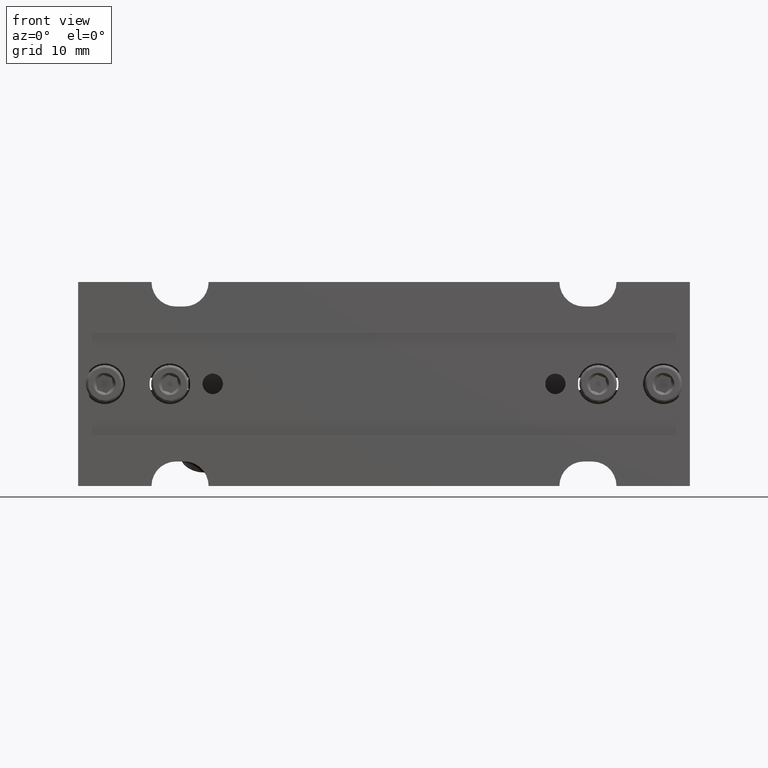
[diagram: clean part render]
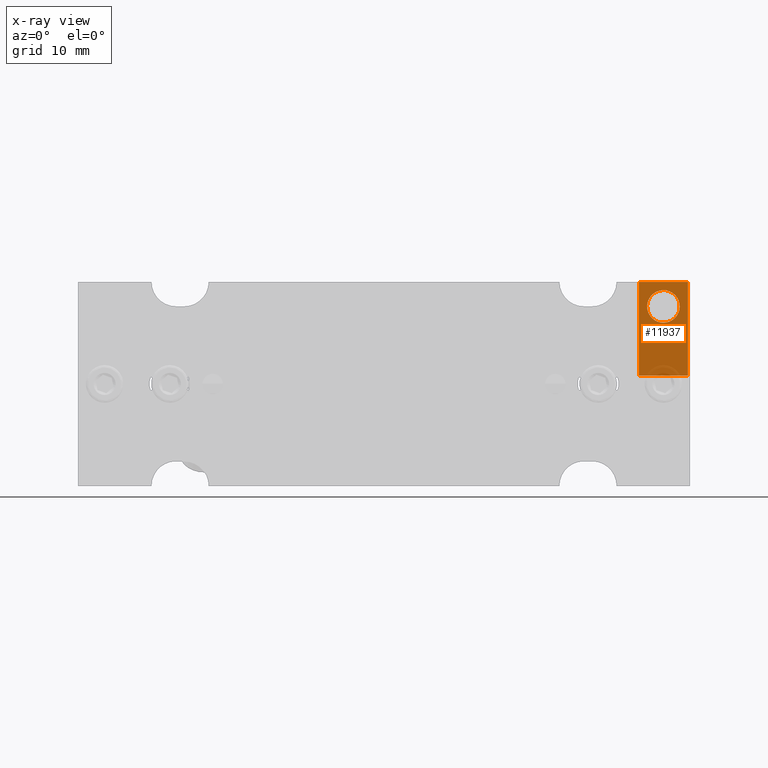
[diagram: x-ray — body ghosted, one internal face saturated and labeled with its STEP entity id]
A machine part, front view, then the same camera in x-ray: the body is ghosted and one INTERNAL B-rep face — a face not visible from any outside direction — is saturated and labeled: STEP entity #11937.
In plain terms, the highlighted planar face has unit normal (0, 1, -0).
Its self-contained STEP definition (entity closure, byte-faithful):
#462 = VERTEX_POINT ( 'NONE', #19604 ) ;
#528 = DIRECTION ( 'NONE',  ( 0.000000000000000000, 1.000000000000000000, -5.551115123125782702E-17 ) ) ;
#798 = DIRECTION ( 'NONE',  ( 0.000000000000000000, 0.000000000000000000, 1.000000000000000000 ) ) ;
#822 = CARTESIAN_POINT ( 'NONE',  ( 51.07634596628248858, 47.42343476192745300, 78.43264947075040538 ) ) ;
#993 = CARTESIAN_POINT ( 'NONE',  ( 53.76194429314890755, 47.42343476192746010, 77.41509654601604495 ) ) ;
#1104 = CARTESIAN_POINT ( 'NONE',  ( 53.22939291630320469, 47.42343476192746010, 73.62017802965158353 ) ) ;
#1202 = CARTESIAN_POINT ( 'NONE',  ( 54.60355553287595143, 47.42343476192745300, 73.50139842596011874 ) ) ;
#1205 = CARTESIAN_POINT ( 'NONE',  ( 52.26387452519005450, 47.42343476192745300, 76.27960252074018399 ) ) ;
#1301 = CARTESIAN_POINT ( 'NONE',  ( 55.68552075850722360, 47.42343476192745300, 76.65179679273362012 ) ) ;
#1303 = CARTESIAN_POINT ( 'NONE',  ( 52.91747649796231201, 47.42343476192745300, 73.79208256805149801 ) ) ;
#1403 = CARTESIAN_POINT ( 'NONE',  ( 56.02947062906315523, 47.42343476192745300, 74.93257950383672039 ) ) ;
#1612 = CARTESIAN_POINT ( 'NONE',  ( 55.94744983128704519, 47.42343476192744589, 76.13920326053889198 ) ) ;
#1760 = EDGE_CURVE ( 'NONE', #12776, #11033, #13743, .T. ) ;
#1805 = CARTESIAN_POINT ( 'NONE',  ( 51.07634596628248147, 47.42343476192745300, 66.92480621239963057 ) ) ;
#2170 = EDGE_LOOP ( 'NONE', ( #16470, #4633 ) ) ;
#2349 = CARTESIAN_POINT ( 'NONE',  ( 51.07634596628248147, 47.42343476192745300, 65.93264947075040538 ) ) ;
#2554 = CARTESIAN_POINT ( 'NONE',  ( 52.56459928371385359, 47.42343476192744589, 76.74938241819620544 ) ) ;
#2635 = LINE ( 'NONE', #15271, #17549 ) ;
#2765 = CARTESIAN_POINT ( 'NONE',  ( 54.70852396425613762, 47.42343476192745300, 73.53467584576907257 ) ) ;
#2864 = CARTESIAN_POINT ( 'NONE',  ( 54.82730350546570719, 47.42343476192746010, 77.28637509796381266 ) ) ;
#2961 = CARTESIAN_POINT ( 'NONE',  ( 55.06898831327401922, 47.42343476192746010, 73.67452367220317910 ) ) ;
#2963 = CARTESIAN_POINT ( 'NONE',  ( 53.44416796831279726, 47.42343476192745300, 77.33062309573173820 ) ) ;
#3071 = CARTESIAN_POINT ( 'NONE',  ( 55.58809264884698820, 47.42343476192745300, 74.11591652330407953 ) ) ;
#3179 = CARTESIAN_POINT ( 'NONE',  ( 54.75320282441656872, 47.42343476192746010, 73.55058318380966398 ) ) ;
#3746 = FACE_BOUND ( 'NONE', #2170, .T. ) ;
#4101 = EDGE_CURVE ( 'NONE', #9520, #8858, #16338, .T. ) ;
#4212 = CARTESIAN_POINT ( 'NONE',  ( 52.46717117402736363, 47.42343476192744589, 74.21350214878518159 ) ) ;
#4288 = ORIENTED_EDGE ( 'NONE', *, *, #19287, .F. ) ;
#4308 = CARTESIAN_POINT ( 'NONE',  ( 55.93007581461635880, 47.42343476192745300, 74.68170258586351906 ) ) ;
#4356 = LINE ( 'NONE', #10255, #4645 ) ;
#4418 = CARTESIAN_POINT ( 'NONE',  ( 54.57624546445467217, 47.42343476192745300, 77.38584167145870651 ) ) ;
#4523 = CARTESIAN_POINT ( 'NONE',  ( 52.21042868893408695, 47.42343476192746010, 74.71248835961857537 ) ) ;
#4625 = CARTESIAN_POINT ( 'NONE',  ( 55.83661407045195091, 47.42343476192746721, 74.47832853560113620 ) ) ;
#4633 = ORIENTED_EDGE ( 'NONE', *, *, #12432, .T. ) ;
#4645 = VECTOR ( 'NONE', #10659, 1000.000000000000000 ) ;
#5132 = VECTOR ( 'NONE', #798, 1000.000000000000000 ) ;
#5744 = CARTESIAN_POINT ( 'NONE',  ( 57.07634596628248858, 47.42343476192745300, 66.92480621239963057 ) ) ;
#5892 = CARTESIAN_POINT ( 'NONE',  ( 57.07634596628248858, 47.42343476192745300, 65.93264947075040538 ) ) ;
#5978 = CARTESIAN_POINT ( 'NONE',  ( 53.32538842709841731, 47.42343476192745300, 73.57892384353704074 ) ) ;
#6077 = CARTESIAN_POINT ( 'NONE',  ( 55.88881740737176784, 47.42343476192744589, 74.58569642076020045 ) ) ;
#6080 = CARTESIAN_POINT ( 'NONE',  ( 53.94927282585784667, 47.42343476192746721, 77.43264947075040538 ) ) ;
#6276 = CARTESIAN_POINT ( 'NONE',  ( 54.07634596628248147, 47.42343476192745300, 77.43264947075040538 ) ) ;
#7216 = CARTESIAN_POINT ( 'NONE',  ( 52.20524210127813092, 47.42343476192747431, 74.72609568095985821 ) ) ;
#7315 = CARTESIAN_POINT ( 'NONE',  ( 52.31822016773448780, 47.42343476192746010, 74.44000712375608941 ) ) ;
#7421 = CARTESIAN_POINT ( 'NONE',  ( 53.39948910815080296, 47.42343476192743168, 77.31471575769116100 ) ) ;
#7520 = CARTESIAN_POINT ( 'NONE',  ( 55.03066690143295148, 47.42343476192745300, 77.19291757492447914 ) ) ;
#7522 = CARTESIAN_POINT ( 'NONE',  ( 52.14505072111182216, 47.42343476192744589, 74.90555163631523783 ) ) ;
#7623 = CARTESIAN_POINT ( 'NONE',  ( 53.27649921391584797, 47.42343476192746010, 73.59944387036682656 ) ) ;
#7725 = CARTESIAN_POINT ( 'NONE',  ( 56.05885197539002718, 47.42343476192746721, 75.74690216766698825 ) ) ;
#7764 = VECTOR ( 'NONE', #18496, 1000.000000000000000 ) ;
#7832 = CARTESIAN_POINT ( 'NONE',  ( 54.39074763942512192, 47.42343476192746010, 73.45020239548479424 ) ) ;
#8594 = FACE_OUTER_BOUND ( 'NONE', #12068, .T. ) ;
#8858 = VERTEX_POINT ( 'NONE', #822 ) ;
#8870 = CARTESIAN_POINT ( 'NONE',  ( 52.85719864430043913, 47.42343476192744589, 77.04182426297809627 ) ) ;
#8971 = CARTESIAN_POINT ( 'NONE',  ( 53.30814596558885654, 47.42343476192744589, 73.58598525293083981 ) ) ;
#9175 = CARTESIAN_POINT ( 'NONE',  ( 53.08370361931009285, 47.42343476192744589, 77.19077526930966826 ) ) ;
#9377 = CARTESIAN_POINT ( 'NONE',  ( 55.83447176484785501, 47.42343476192743879, 76.42529181771494962 ) ) ;
#9520 = VERTEX_POINT ( 'NONE', #1805 ) ;
#9999 = AXIS2_PLACEMENT_3D ( 'NONE', #13150, #528, #14818 ) ;
#10255 = CARTESIAN_POINT ( 'NONE',  ( 51.07634596628248147, 47.42343476192745300, 66.92480621239963057 ) ) ;
#10607 = CARTESIAN_POINT ( 'NONE',  ( 55.90955156666034043, 47.42343476192746010, 74.63280271837717805 ) ) ;
#10659 = DIRECTION ( 'NONE',  ( -1.000000000000000000, 0.000000000000000000, -0.000000000000000000 ) ) ;
#10718 = CARTESIAN_POINT ( 'NONE',  ( 53.35618485514929432, 47.42343476192746010, 77.29856674809811068 ) ) ;
#10816 = CARTESIAN_POINT ( 'NONE',  ( 52.19426415658904972, 47.42343476192744589, 74.75583185188622792 ) ) ;
#11033 = VERTEX_POINT ( 'NONE', #12417 ) ;
#11592 = PLANE ( 'NONE',  #9999 ) ;
#11937 = ADVANCED_FACE ( 'NONE', ( #8594, #3746 ), #11592, .T. ) ;
#11966 = CARTESIAN_POINT ( 'NONE',  ( 52.43577906359823970, 47.42343476192744589, 76.59151893909458408 ) ) ;
#12054 = B_SPLINE_CURVE_WITH_KNOTS ( 'NONE', 3,
 ( #17135, #17241, #7832, #1202, #2765, #3179, #20222, #12573, #2961, #14140, #3071, #15592, #4625, #6077, #10607, #20324, #4308, #1403, #16937, #13827, #7725, #17040, #15398, #20424, #1612, #13928, #9377, #1301, #12472, #17350, #7520, #20120, #14037, #18587, #2864, #4418, #15494, #6276 ),
 .UNSPECIFIED., .F., .F.,
 ( 4, 1, 1, 1, 2, 2, 2, 1, 1, 1, 2, 2, 2, 1, 1, 1, 2, 2, 2, 1, 1, 1, 2, 2, 4 ),
 ( 0.000000000000000000, 0.06250000000003663736, 0.09375000000005495604, 0.1093750000000650868, 0.1171875000000696387, 0.1250000000000741907, 0.2500000000001597056, 0.3125000000002024492, 0.3437500000002264855, 0.3593750000002385314, 0.3671875000002416956, 0.3750000000002448042, 0.5000000000002022826, 0.5625000000001776357, 0.5937500000001684208, 0.6093750000001604272, 0.6171875000001533218, 0.6250000000001461054, 0.7500000000000984768, 0.8125000000000724976, 0.8437500000000590639, 0.8593750000000522915, 0.8671875000000490719, 0.8750000000000457412, 1.000000000000000000 ),
 .UNSPECIFIED. ) ;
#12068 = EDGE_LOOP ( 'NONE', ( #12959, #12558, #4288, #16544 ) ) ;
#12072 = CARTESIAN_POINT ( 'NONE',  ( 52.31607786210761191, 47.42343476192745300, 76.38697040589893561 ) ) ;
#12170 = CARTESIAN_POINT ( 'NONE',  ( 53.36977155924966354, 47.42343476192746721, 77.30374517973221771 ) ) ;
#12271 = CARTESIAN_POINT ( 'NONE',  ( 53.54913639969584693, 47.42343476192746010, 77.36390051554069203 ) ) ;
#12417 = CARTESIAN_POINT ( 'NONE',  ( 57.07634596628248858, 47.42343476192745300, 78.43264947075040538 ) ) ;
#12432 = EDGE_CURVE ( 'NONE', #462, #15711, #18021, .T. ) ;
#12472 = CARTESIAN_POINT ( 'NONE',  ( 55.39307891372978077, 47.42343476192744589, 76.94439615331843640 ) ) ;
#12558 = ORIENTED_EDGE ( 'NONE', *, *, #4101, .T. ) ;
#12573 = CARTESIAN_POINT ( 'NONE',  ( 54.79650707741450333, 47.42343476192745300, 73.56673219340200376 ) ) ;
#12776 = VERTEX_POINT ( 'NONE', #5744 ) ;
#12959 = ORIENTED_EDGE ( 'NONE', *, *, #17669, .T. ) ;
#13150 = CARTESIAN_POINT ( 'NONE',  ( 51.07634596628248147, 47.42343476192745300, 53.43264947075041960 ) ) ;
#13424 = EDGE_CURVE ( 'NONE', #15711, #462, #12054, .T. ) ;
#13630 = CARTESIAN_POINT ( 'NONE',  ( 53.82184294116533607, 47.42343476192744589, 73.43264947075043381 ) ) ;
#13730 = CARTESIAN_POINT ( 'NONE',  ( 52.07631228980218907, 47.42343476192744589, 75.30566145958405855 ) ) ;
#13743 = LINE ( 'NONE', #5892, #7764 ) ;
#13827 = CARTESIAN_POINT ( 'NONE',  ( 56.07637964276358389, 47.42343476192745300, 75.55963748190814044 ) ) ;
#13829 = CARTESIAN_POINT ( 'NONE',  ( 52.17834655774591113, 47.42343476192744589, 74.80053664986908757 ) ) ;
#13928 = CARTESIAN_POINT ( 'NONE',  ( 55.94226324362981728, 47.42343476192745300, 76.15281058188411123 ) ) ;
#14037 = CARTESIAN_POINT ( 'NONE',  ( 54.87619271865613513, 47.42343476192744589, 77.26585507112987727 ) ) ;
#14140 = CARTESIAN_POINT ( 'NONE',  ( 55.29549328827275190, 47.42343476192744589, 73.82347467852390821 ) ) ;
#14229 = DIRECTION ( 'NONE',  ( -1.000000000000000000, 0.000000000000000000, -0.000000000000000000 ) ) ;
#14818 = DIRECTION ( 'NONE',  ( 0.000000000000000000, 5.551115123125782702E-17, 1.000000000000000000 ) ) ;
#15188 = CARTESIAN_POINT ( 'NONE',  ( 52.75961301885038779, 47.42343476192744589, 73.92090278817342153 ) ) ;
#15271 = CARTESIAN_POINT ( 'NONE',  ( 51.07634596628248147, 47.42343476192746010, 78.43264947075040538 ) ) ;
#15398 = CARTESIAN_POINT ( 'NONE',  ( 55.97434537481967709, 47.42343476192745300, 76.06476229162515779 ) ) ;
#15494 = CARTESIAN_POINT ( 'NONE',  ( 54.33084899141341850, 47.42343476192746010, 77.43264947075041960 ) ) ;
#15496 = CARTESIAN_POINT ( 'NONE',  ( 52.22968174846489831, 47.42343476192745300, 76.20084947144738408 ) ) ;
#15592 = CARTESIAN_POINT ( 'NONE',  ( 55.71691286895951123, 47.42343476192744589, 74.27378000240526035 ) ) ;
#15595 = CARTESIAN_POINT ( 'NONE',  ( 53.12202503115199193, 47.42343476192746721, 73.67238136656456504 ) ) ;
#15711 = VERTEX_POINT ( 'NONE', #20363 ) ;
#16338 = LINE ( 'NONE', #2349, #5132 ) ;
#16470 = ORIENTED_EDGE ( 'NONE', *, *, #13424, .T. ) ;
#16544 = ORIENTED_EDGE ( 'NONE', *, *, #1760, .F. ) ;
#16734 = CARTESIAN_POINT ( 'NONE',  ( 54.07634596628248147, 47.42343476192745300, 77.43264947075040538 ) ) ;
#16937 = CARTESIAN_POINT ( 'NONE',  ( 56.07627861332026242, 47.42343476192745300, 75.17867344843487842 ) ) ;
#17040 = CARTESIAN_POINT ( 'NONE',  ( 56.00764121145424923, 47.42343476192746721, 75.95974730517430373 ) ) ;
#17042 = CARTESIAN_POINT ( 'NONE',  ( 52.22261611794871783, 47.42343476192744589, 76.18359635563865595 ) ) ;
#17135 = CARTESIAN_POINT ( 'NONE',  ( 54.07634596628248147, 47.42343476192745300, 73.43264947075041960 ) ) ;
#17138 = CARTESIAN_POINT ( 'NONE',  ( 53.57644646812409661, 47.42343476192743879, 73.47945727004214689 ) ) ;
#17241 = CARTESIAN_POINT ( 'NONE',  ( 54.20341910671226771, 47.42343476192744589, 73.43264947075039117 ) ) ;
#17350 = CARTESIAN_POINT ( 'NONE',  ( 55.23521543462923233, 47.42343476192744589, 77.07321637343363818 ) ) ;
#17549 = VECTOR ( 'NONE', #14229, 1000.000000000000000 ) ;
#17669 = EDGE_CURVE ( 'NONE', #12776, #9520, #4356, .T. ) ;
#18021 = B_SPLINE_CURVE_WITH_KNOTS ( 'NONE', 3,
 ( #16734, #6080, #993, #12271, #2963, #7421, #12170, #10718, #9175, #8870, #2554, #11966, #12072, #1205, #20028, #15496, #17042, #18484, #18591, #13730, #18286, #7522, #13829, #10816, #7216, #4523, #7315, #4212, #15188, #1303, #15595, #1104, #7623, #8971, #5978, #17138, #13630, #19928 ),
 .UNSPECIFIED., .F., .F.,
 ( 4, 1, 1, 1, 2, 2, 2, 1, 1, 1, 2, 2, 2, 1, 1, 1, 2, 2, 2, 1, 1, 1, 2, 2, 4 ),
 ( 0.000000000000000000, 0.06250000000002187139, 0.09375000000003451406, 0.1093750000000398709, 0.1171875000000398154, 0.1250000000000397460, 0.2500000000000789924, 0.3125000000000997535, 0.3437500000001074696, 0.3593750000001105782, 0.3671875000001099676, 0.3750000000001093015, 0.5000000000001048051, 0.5625000000001060263, 0.5937500000001028067, 0.6093750000001051381, 0.6171875000001029177, 0.6250000000001008083, 0.7500000000000771605, 0.8125000000000663913, 0.8437500000000578426, 0.8593750000000537348, 0.8671875000000502931, 0.8750000000000468514, 1.000000000000000000 ),
 .UNSPECIFIED. ) ;
#18286 = CARTESIAN_POINT ( 'NONE',  ( 52.09383995717639237, 47.42343476192745300, 75.11839677381890112 ) ) ;
#18484 = CARTESIAN_POINT ( 'NONE',  ( 52.12322130350014504, 47.42343476192746010, 75.93271943764170828 ) ) ;
#18496 = DIRECTION ( 'NONE',  ( 0.000000000000000000, 0.000000000000000000, 1.000000000000000000 ) ) ;
#18587 = CARTESIAN_POINT ( 'NONE',  ( 54.84454596697980122, 47.42343476192746010, 77.27931368856783934 ) ) ;
#18591 = CARTESIAN_POINT ( 'NONE',  ( 52.07641331924305916, 47.42343476192746010, 75.68662549308307064 ) ) ;
#19287 = EDGE_CURVE ( 'NONE', #11033, #8858, #2635, .T. ) ;
#19604 = CARTESIAN_POINT ( 'NONE',  ( 54.07634596628248147, 47.42343476192745300, 77.43264947075040538 ) ) ;
#19928 = CARTESIAN_POINT ( 'NONE',  ( 54.07634596628248147, 47.42343476192745300, 73.43264947075041960 ) ) ;
#20028 = CARTESIAN_POINT ( 'NONE',  ( 52.24314036590275379, 47.42343476192746721, 76.23249622312339113 ) ) ;
#20120 = CARTESIAN_POINT ( 'NONE',  ( 54.92329901627338273, 47.42343476192745300, 77.24512091184237761 ) ) ;
#20222 = CARTESIAN_POINT ( 'NONE',  ( 54.78292037331658548, 47.42343476192746721, 73.56155376176866412 ) ) ;
#20324 = CARTESIAN_POINT ( 'NONE',  ( 55.92301018409906277, 47.42343476192745300, 74.66444947005332722 ) ) ;
#20363 = CARTESIAN_POINT ( 'NONE',  ( 54.07634596628248147, 47.42343476192745300, 73.43264947075041960 ) ) ;
#20424 = CARTESIAN_POINT ( 'NONE',  ( 55.95842777597631823, 47.42343476192746010, 76.10946708961064644 ) ) ;